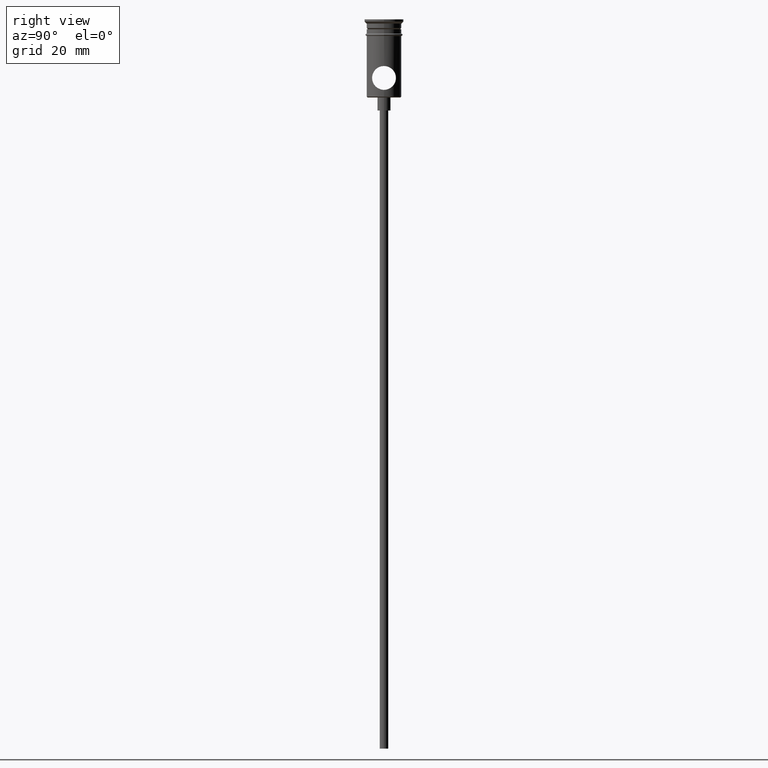
[diagram: clean part render]
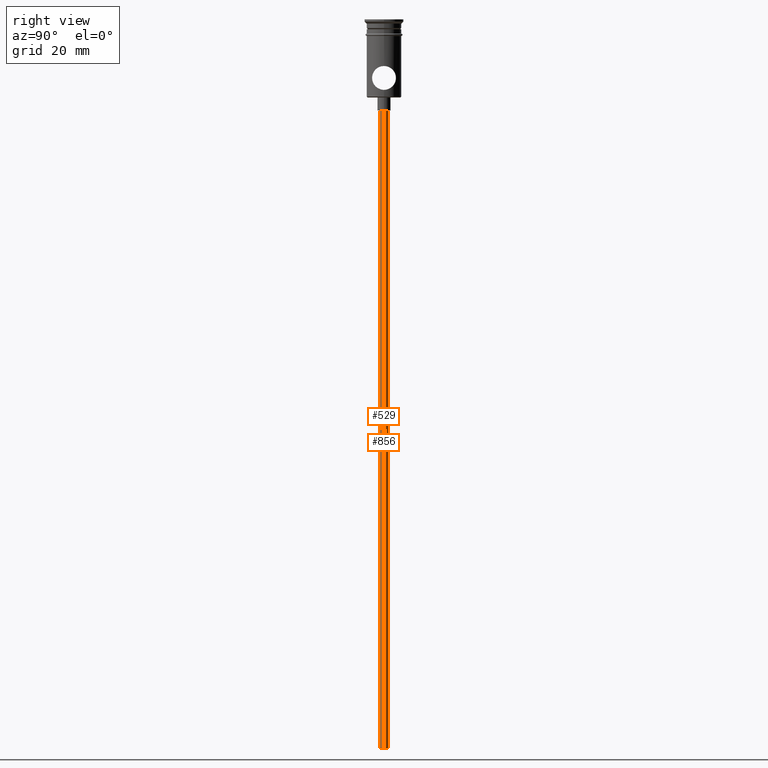
[diagram: same view with one multi-face feature highlighted, each face labeled with its STEP entity id]
A machine part, right view. The highlighted faces form ONE feature: a constant-radius fillet chain: 2 tangent blend faces with common blend radius 1 mm. The faces share edges in the B-rep.
Their STEP definitions:
[1] entity #856 (Cylinder):
#15 = VERTEX_POINT ( 'NONE', #1313 ) ;
#29 = LINE ( 'NONE', #1126, #416 ) ;
#58 = LINE ( 'NONE', #1022, #704 ) ;
#93 = ORIENTED_EDGE ( 'NONE', *, *, #844, .T. ) ;
#123 = FACE_OUTER_BOUND ( 'NONE', #1010, .T. ) ;
#173 = ORIENTED_EDGE ( 'NONE', *, *, #1291, .F. ) ;
#192 = EDGE_CURVE ( 'NONE', #15, #770, #555, .T. ) ;
#256 = CYLINDRICAL_SURFACE ( 'NONE', #755, 0.9999999999999997780 ) ;
#303 = DIRECTION ( 'NONE',  ( -1.000000000000000000, 0.000000000000000000, 0.000000000000000000 ) ) ;
#346 = EDGE_CURVE ( 'NONE', #1077, #770, #58, .T. ) ;
#416 = VECTOR ( 'NONE', #1102, 1000.000000000000000 ) ;
#493 = AXIS2_PLACEMENT_3D ( 'NONE', #1060, #1278, #303 ) ;
#497 = CARTESIAN_POINT ( 'NONE',  ( 0.9999999999999997780, 0.000000000000000000, -167.9999999999999716 ) ) ;
#555 = CIRCLE ( 'NONE', #655, 0.9999999999999997780 ) ;
#568 = CARTESIAN_POINT ( 'NONE',  ( 0.000000000000000000, 0.000000000000000000, -167.9999999999999716 ) ) ;
#597 = ORIENTED_EDGE ( 'NONE', *, *, #192, .T. ) ;
#655 = AXIS2_PLACEMENT_3D ( 'NONE', #1091, #1206, #669 ) ;
#669 = DIRECTION ( 'NONE',  ( -1.000000000000000000, 0.000000000000000000, 0.000000000000000000 ) ) ;
#704 = VECTOR ( 'NONE', #1228, 1000.000000000000000 ) ;
#755 = AXIS2_PLACEMENT_3D ( 'NONE', #568, #1212, #1121 ) ;
#759 = CARTESIAN_POINT ( 'NONE',  ( 0.9999999999999997780, 0.000000000000000000, -20.99999999999999645 ) ) ;
#770 = VERTEX_POINT ( 'NONE', #759 ) ;
#833 = CARTESIAN_POINT ( 'NONE',  ( -0.9999999999999997780, 1.224646799147352961E-16, -167.9999999999999716 ) ) ;
#844 = EDGE_CURVE ( 'NONE', #1031, #15, #29, .T. ) ;
#856 = ADVANCED_FACE ( 'NONE', ( #123 ), #256, .T. ) ;
#1010 = EDGE_LOOP ( 'NONE', ( #173, #93, #597, #1306 ) ) ;
#1022 = CARTESIAN_POINT ( 'NONE',  ( 0.9999999999999997780, 0.000000000000000000, -167.9999999999999716 ) ) ;
#1031 = VERTEX_POINT ( 'NONE', #833 ) ;
#1060 = CARTESIAN_POINT ( 'NONE',  ( 0.000000000000000000, 0.000000000000000000, -167.9999999999999716 ) ) ;
#1077 = VERTEX_POINT ( 'NONE', #497 ) ;
#1091 = CARTESIAN_POINT ( 'NONE',  ( 0.000000000000000000, 0.000000000000000000, -20.99999999999999645 ) ) ;
#1102 = DIRECTION ( 'NONE',  ( -0.000000000000000000, -0.000000000000000000, 1.000000000000000000 ) ) ;
#1121 = DIRECTION ( 'NONE',  ( 1.000000000000000000, 0.000000000000000000, 0.000000000000000000 ) ) ;
#1126 = CARTESIAN_POINT ( 'NONE',  ( -0.9999999999999997780, 1.224646799147352961E-16, -167.9999999999999716 ) ) ;
#1206 = DIRECTION ( 'NONE',  ( 0.000000000000000000, 0.000000000000000000, -1.000000000000000000 ) ) ;
#1212 = DIRECTION ( 'NONE',  ( -0.000000000000000000, -0.000000000000000000, 1.000000000000000000 ) ) ;
#1228 = DIRECTION ( 'NONE',  ( -0.000000000000000000, -0.000000000000000000, 1.000000000000000000 ) ) ;
#1278 = DIRECTION ( 'NONE',  ( 0.000000000000000000, 0.000000000000000000, -1.000000000000000000 ) ) ;
#1291 = EDGE_CURVE ( 'NONE', #1031, #1077, #1341, .T. ) ;
#1306 = ORIENTED_EDGE ( 'NONE', *, *, #346, .F. ) ;
#1313 = CARTESIAN_POINT ( 'NONE',  ( -0.9999999999999997780, 1.224646799147352961E-16, -20.99999999999999645 ) ) ;
#1341 = CIRCLE ( 'NONE', #493, 0.9999999999999997780 ) ;
[2] entity #529 (Cylinder):
#7 = DIRECTION ( 'NONE',  ( 1.000000000000000000, 0.000000000000000000, 0.000000000000000000 ) ) ;
#10 = AXIS2_PLACEMENT_3D ( 'NONE', #343, #323, #540 ) ;
#15 = VERTEX_POINT ( 'NONE', #1313 ) ;
#29 = LINE ( 'NONE', #1126, #416 ) ;
#58 = LINE ( 'NONE', #1022, #704 ) ;
#61 = AXIS2_PLACEMENT_3D ( 'NONE', #1123, #1241, #918 ) ;
#84 = AXIS2_PLACEMENT_3D ( 'NONE', #670, #448, #7 ) ;
#126 = ORIENTED_EDGE ( 'NONE', *, *, #346, .T. ) ;
#180 = EDGE_CURVE ( 'NONE', #1077, #1031, #700, .T. ) ;
#229 = CYLINDRICAL_SURFACE ( 'NONE', #84, 0.9999999999999997780 ) ;
#272 = CIRCLE ( 'NONE', #61, 0.9999999999999997780 ) ;
#323 = DIRECTION ( 'NONE',  ( 0.000000000000000000, 0.000000000000000000, -1.000000000000000000 ) ) ;
#343 = CARTESIAN_POINT ( 'NONE',  ( 0.000000000000000000, 0.000000000000000000, -167.9999999999999716 ) ) ;
#346 = EDGE_CURVE ( 'NONE', #1077, #770, #58, .T. ) ;
#364 = EDGE_CURVE ( 'NONE', #770, #15, #272, .T. ) ;
#416 = VECTOR ( 'NONE', #1102, 1000.000000000000000 ) ;
#448 = DIRECTION ( 'NONE',  ( -0.000000000000000000, -0.000000000000000000, 1.000000000000000000 ) ) ;
#497 = CARTESIAN_POINT ( 'NONE',  ( 0.9999999999999997780, 0.000000000000000000, -167.9999999999999716 ) ) ;
#529 = ADVANCED_FACE ( 'NONE', ( #869 ), #229, .T. ) ;
#540 = DIRECTION ( 'NONE',  ( -1.000000000000000000, 0.000000000000000000, 0.000000000000000000 ) ) ;
#605 = ORIENTED_EDGE ( 'NONE', *, *, #364, .T. ) ;
#670 = CARTESIAN_POINT ( 'NONE',  ( 0.000000000000000000, 0.000000000000000000, -167.9999999999999716 ) ) ;
#700 = CIRCLE ( 'NONE', #10, 0.9999999999999997780 ) ;
#704 = VECTOR ( 'NONE', #1228, 1000.000000000000000 ) ;
#759 = CARTESIAN_POINT ( 'NONE',  ( 0.9999999999999997780, 0.000000000000000000, -20.99999999999999645 ) ) ;
#770 = VERTEX_POINT ( 'NONE', #759 ) ;
#804 = ORIENTED_EDGE ( 'NONE', *, *, #180, .F. ) ;
#833 = CARTESIAN_POINT ( 'NONE',  ( -0.9999999999999997780, 1.224646799147352961E-16, -167.9999999999999716 ) ) ;
#844 = EDGE_CURVE ( 'NONE', #1031, #15, #29, .T. ) ;
#869 = FACE_OUTER_BOUND ( 'NONE', #1001, .T. ) ;
#918 = DIRECTION ( 'NONE',  ( -1.000000000000000000, 0.000000000000000000, 0.000000000000000000 ) ) ;
#1001 = EDGE_LOOP ( 'NONE', ( #1129, #804, #126, #605 ) ) ;
#1022 = CARTESIAN_POINT ( 'NONE',  ( 0.9999999999999997780, 0.000000000000000000, -167.9999999999999716 ) ) ;
#1031 = VERTEX_POINT ( 'NONE', #833 ) ;
#1077 = VERTEX_POINT ( 'NONE', #497 ) ;
#1102 = DIRECTION ( 'NONE',  ( -0.000000000000000000, -0.000000000000000000, 1.000000000000000000 ) ) ;
#1123 = CARTESIAN_POINT ( 'NONE',  ( 0.000000000000000000, 0.000000000000000000, -20.99999999999999645 ) ) ;
#1126 = CARTESIAN_POINT ( 'NONE',  ( -0.9999999999999997780, 1.224646799147352961E-16, -167.9999999999999716 ) ) ;
#1129 = ORIENTED_EDGE ( 'NONE', *, *, #844, .F. ) ;
#1228 = DIRECTION ( 'NONE',  ( -0.000000000000000000, -0.000000000000000000, 1.000000000000000000 ) ) ;
#1241 = DIRECTION ( 'NONE',  ( 0.000000000000000000, 0.000000000000000000, -1.000000000000000000 ) ) ;
#1313 = CARTESIAN_POINT ( 'NONE',  ( -0.9999999999999997780, 1.224646799147352961E-16, -20.99999999999999645 ) ) ;